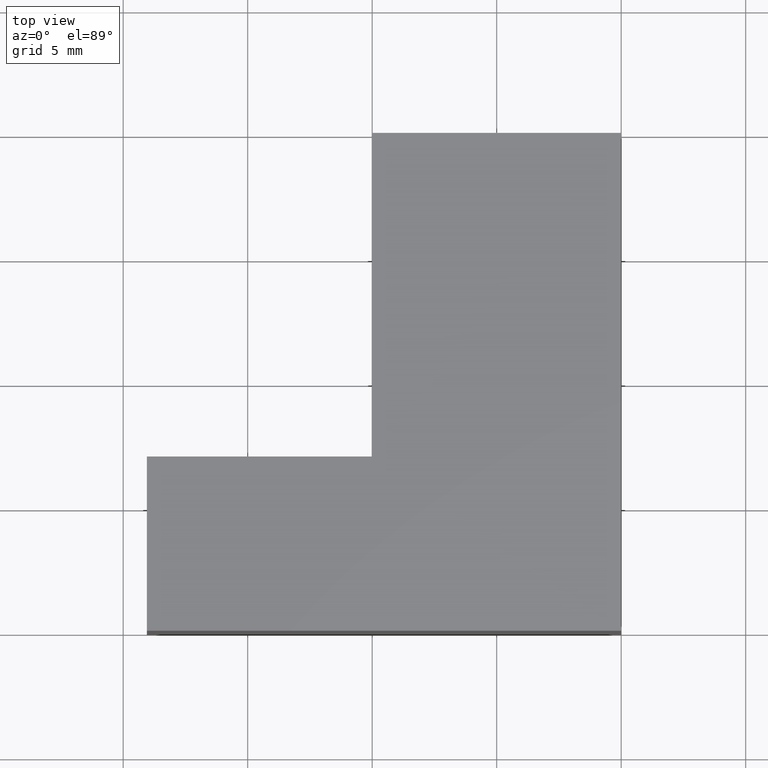
[diagram: clean part render]
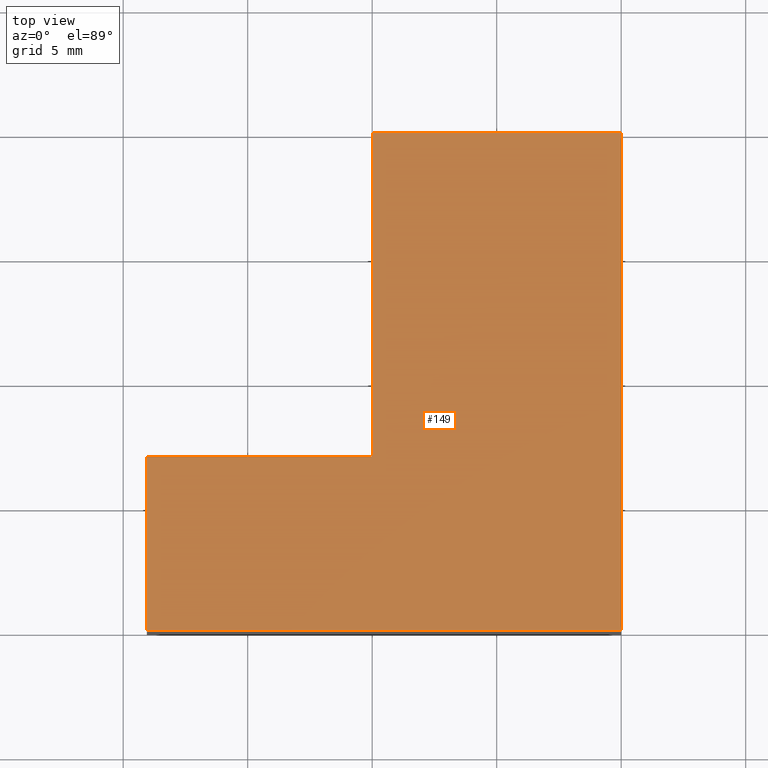
[diagram: same view with one face highlighted and labeled with its STEP entity id]
A machine part, top view. The second image highlights one B-rep face of the part: STEP entity #149.
In plain terms, the highlighted planar face has unit normal (0, 0, 1).
Its self-contained STEP definition (entity closure, byte-faithful):
#23=FACE_OUTER_BOUND('',#31,.T.);
#31=EDGE_LOOP('',(#128,#129,#130,#131,#132,#133));
#38=LINE('',#234,#56);
#41=LINE('',#239,#59);
#43=LINE('',#243,#61);
#45=LINE('',#247,#63);
#47=LINE('',#251,#65);
#49=LINE('',#254,#67);
#56=VECTOR('',#193,10.);
#59=VECTOR('',#198,10.);
#61=VECTOR('',#202,10.);
#63=VECTOR('',#206,10.);
#65=VECTOR('',#210,10.);
#67=VECTOR('',#214,10.);
#74=VERTEX_POINT('',#232);
#75=VERTEX_POINT('',#233);
#76=VERTEX_POINT('',#238);
#77=VERTEX_POINT('',#242);
#78=VERTEX_POINT('',#246);
#79=VERTEX_POINT('',#250);
#86=EDGE_CURVE('',#74,#75,#38,.T.);
#89=EDGE_CURVE('',#75,#76,#41,.T.);
#91=EDGE_CURVE('',#76,#77,#43,.T.);
#93=EDGE_CURVE('',#77,#78,#45,.T.);
#95=EDGE_CURVE('',#78,#79,#47,.T.);
#97=EDGE_CURVE('',#79,#74,#49,.T.);
#128=ORIENTED_EDGE('',*,*,#86,.F.);
#129=ORIENTED_EDGE('',*,*,#97,.F.);
#130=ORIENTED_EDGE('',*,*,#95,.F.);
#131=ORIENTED_EDGE('',*,*,#93,.F.);
#132=ORIENTED_EDGE('',*,*,#91,.F.);
#133=ORIENTED_EDGE('',*,*,#89,.F.);
#141=PLANE('',#180);
#149=ADVANCED_FACE('',(#23),#141,.T.);
#180=AXIS2_PLACEMENT_3D('',#255,#215,#216);
#193=DIRECTION('',(-3.1720657846433E-16,1.,0.));
#198=DIRECTION('',(1.,3.68029731919941E-16,0.));
#202=DIRECTION('',(-3.41607084500048E-16,1.,0.));
#206=DIRECTION('',(1.,6.66133814775094E-16,0.));
#210=DIRECTION('',(3.05311331771918E-16,-1.,0.));
#214=DIRECTION('',(-1.,-1.45698559662094E-16,0.));
#215=DIRECTION('center_axis',(0.,0.,1.));
#216=DIRECTION('ref_axis',(1.,0.,0.));
#232=CARTESIAN_POINT('',(-19.05,-5.55111512312578E-16,5.));
#233=CARTESIAN_POINT('',(-19.05,7.,5.));
#234=CARTESIAN_POINT('',(-19.05,-5.55111512312578E-16,5.));
#238=CARTESIAN_POINT('',(-10.,7.,5.));
#239=CARTESIAN_POINT('',(-19.05,7.,5.));
#242=CARTESIAN_POINT('',(-10.,20.,5.));
#243=CARTESIAN_POINT('',(-10.,7.,5.));
#246=CARTESIAN_POINT('',(-2.22044604925031E-15,20.,5.));
#247=CARTESIAN_POINT('',(-10.,20.,5.));
#250=CARTESIAN_POINT('',(3.88578058618805E-15,2.22044604925031E-15,5.));
#251=CARTESIAN_POINT('',(-2.22044604925031E-15,20.,5.));
#254=CARTESIAN_POINT('',(3.88578058618805E-15,2.22044604925031E-15,5.));
#255=CARTESIAN_POINT('Origin',(-8.01859795134443,8.49359795134443,5.));